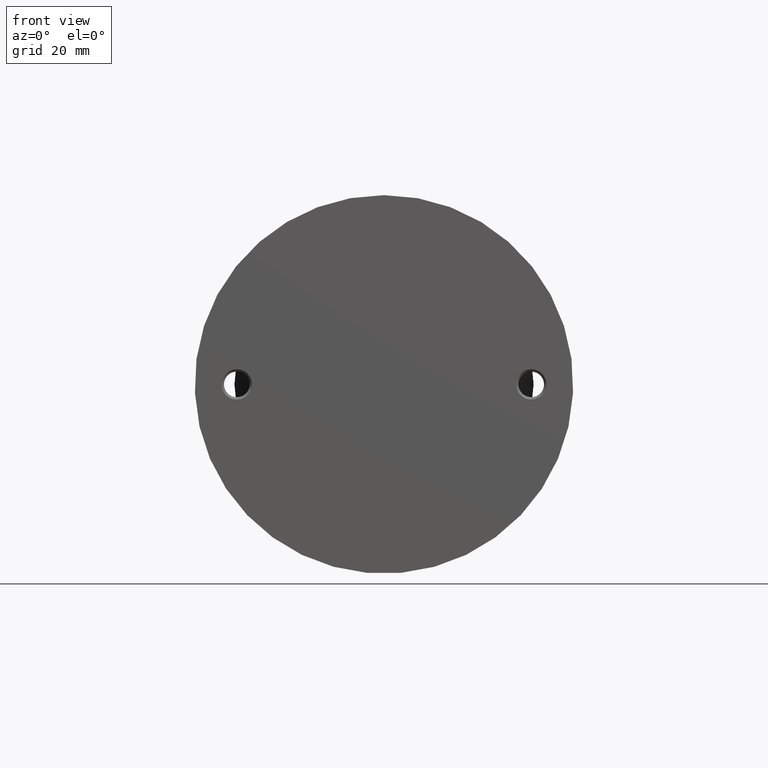
[diagram: clean part render]
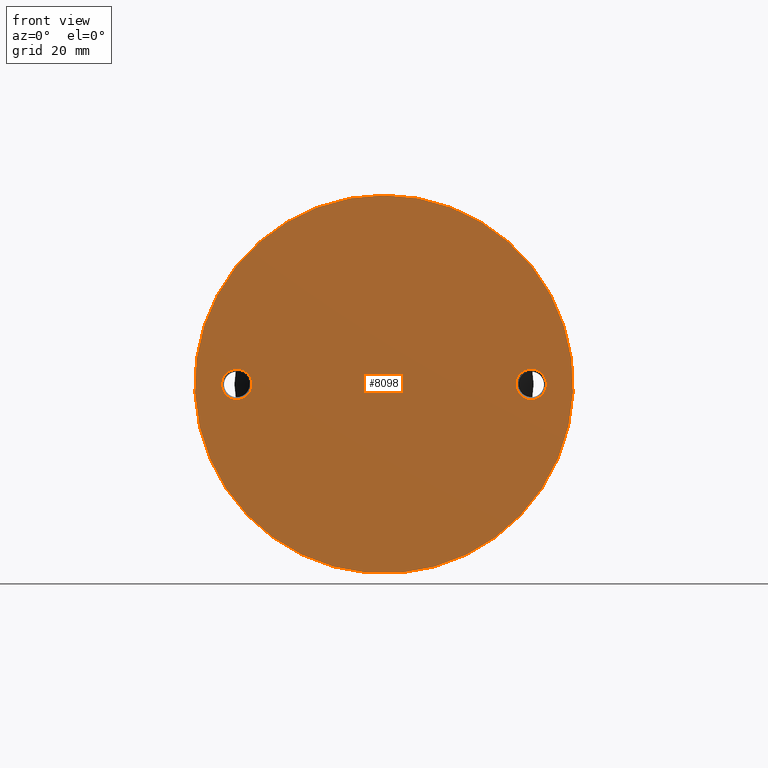
[diagram: same view with one face highlighted and labeled with its STEP entity id]
A machine part, front view. The second image highlights one B-rep face of the part: STEP entity #8098.
In plain terms, the highlighted planar face has unit normal (0, 1, 0).
Its self-contained STEP definition (entity closure, byte-faithful):
#385 = DIRECTION ( 'NONE',  ( 0.000000000000000000, 0.000000000000000000, 1.000000000000000000 ) ) ;
#1538 = VERTEX_POINT ( 'NONE', #6016 ) ;
#2289 = FACE_BOUND ( 'NONE', #2723, .T. ) ;
#2306 = DIRECTION ( 'NONE',  ( 0.000000000000000000, 0.000000000000000000, 1.000000000000000000 ) ) ;
#2501 = CARTESIAN_POINT ( 'NONE',  ( 0.000000000000000000, 0.000000000000000000, 0.000000000000000000 ) ) ;
#2537 = FACE_OUTER_BOUND ( 'NONE', #6685, .T. ) ;
#2723 = EDGE_LOOP ( 'NONE', ( #4658 ) ) ;
#3102 = DIRECTION ( 'NONE',  ( 0.000000000000000000, 1.000000000000000000, 0.000000000000000000 ) ) ;
#3547 = CARTESIAN_POINT ( 'NONE',  ( 31.50000000000000000, 0.000000000000000000, 9.644093543285407117E-15 ) ) ;
#3670 = PLANE ( 'NONE',  #9459 ) ;
#4135 = CIRCLE ( 'NONE', #8867, 40.50000000000000000 ) ;
#4581 = CARTESIAN_POINT ( 'NONE',  ( -31.50000000000000000, 0.000000000000000000, 1.928818708657081739E-15 ) ) ;
#4596 = FACE_BOUND ( 'NONE', #6752, .T. ) ;
#4658 = ORIENTED_EDGE ( 'NONE', *, *, #9435, .T. ) ;
#5286 = CARTESIAN_POINT ( 'NONE',  ( 31.50000000000000000, 0.000000000000000000, 3.250000000000026201 ) ) ;
#5413 = DIRECTION ( 'NONE',  ( 0.000000000000000000, 0.000000000000000000, 1.000000000000000000 ) ) ;
#5677 = VERTEX_POINT ( 'NONE', #5286 ) ;
#5711 = AXIS2_PLACEMENT_3D ( 'NONE', #4581, #3102, #5413 ) ;
#5772 = EDGE_CURVE ( 'NONE', #9819, #9819, #4135, .T. ) ;
#6016 = CARTESIAN_POINT ( 'NONE',  ( -31.50000000000000000, 0.000000000000000000, 3.250000000000018652 ) ) ;
#6484 = DIRECTION ( 'NONE',  ( 0.000000000000000000, -0.000000000000000000, 1.000000000000000000 ) ) ;
#6503 = ORIENTED_EDGE ( 'NONE', *, *, #7460, .T. ) ;
#6685 = EDGE_LOOP ( 'NONE', ( #9382 ) ) ;
#6752 = EDGE_LOOP ( 'NONE', ( #6503 ) ) ;
#6948 = DIRECTION ( 'NONE',  ( 0.000000000000000000, 1.000000000000000000, 0.000000000000000000 ) ) ;
#7223 = DIRECTION ( 'NONE',  ( 0.000000000000000000, 1.000000000000000000, 0.000000000000000000 ) ) ;
#7460 = EDGE_CURVE ( 'NONE', #5677, #5677, #9622, .T. ) ;
#7622 = CARTESIAN_POINT ( 'NONE',  ( 0.000000000000000000, 0.000000000000000000, 40.50000000000000000 ) ) ;
#8030 = AXIS2_PLACEMENT_3D ( 'NONE', #3547, #9887, #385 ) ;
#8098 = ADVANCED_FACE ( 'NONE', ( #2289, #4596, #2537 ), #3670, .F. ) ;
#8260 = CIRCLE ( 'NONE', #5711, 3.250000000000016875 ) ;
#8867 = AXIS2_PLACEMENT_3D ( 'NONE', #10068, #6948, #2306 ) ;
#9382 = ORIENTED_EDGE ( 'NONE', *, *, #5772, .F. ) ;
#9435 = EDGE_CURVE ( 'NONE', #1538, #1538, #8260, .T. ) ;
#9459 = AXIS2_PLACEMENT_3D ( 'NONE', #2501, #7223, #6484 ) ;
#9622 = CIRCLE ( 'NONE', #8030, 3.250000000000016875 ) ;
#9819 = VERTEX_POINT ( 'NONE', #7622 ) ;
#9887 = DIRECTION ( 'NONE',  ( 0.000000000000000000, 1.000000000000000000, 0.000000000000000000 ) ) ;
#10068 = CARTESIAN_POINT ( 'NONE',  ( 0.000000000000000000, 0.000000000000000000, 0.000000000000000000 ) ) ;